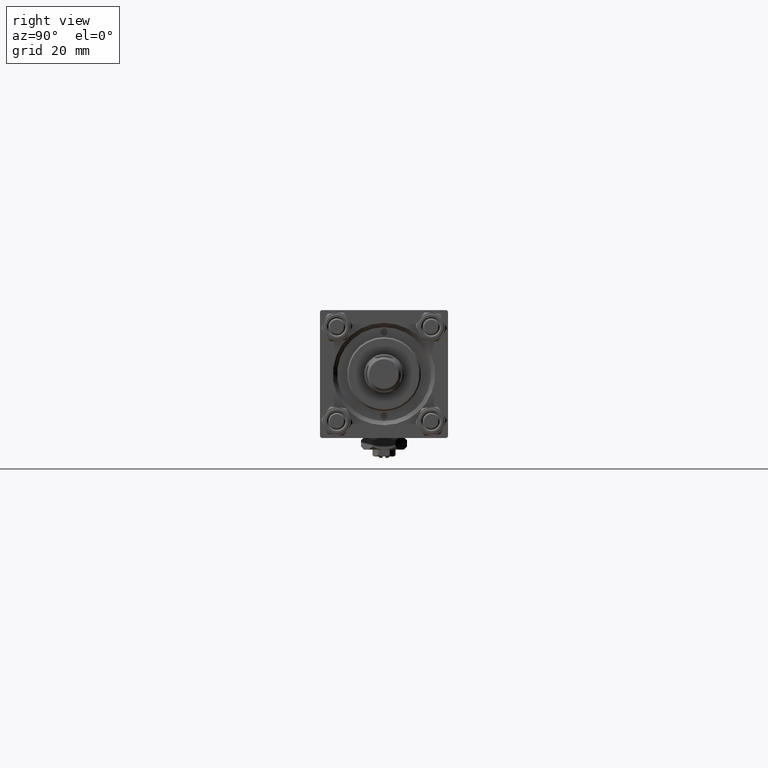
[diagram: clean part render]
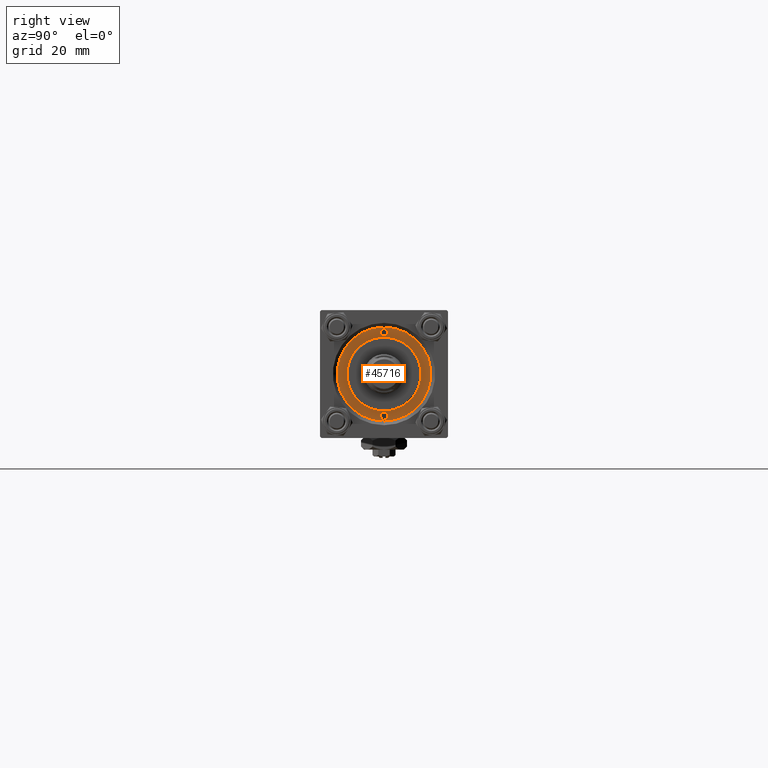
[diagram: same view with one face highlighted and labeled with its STEP entity id]
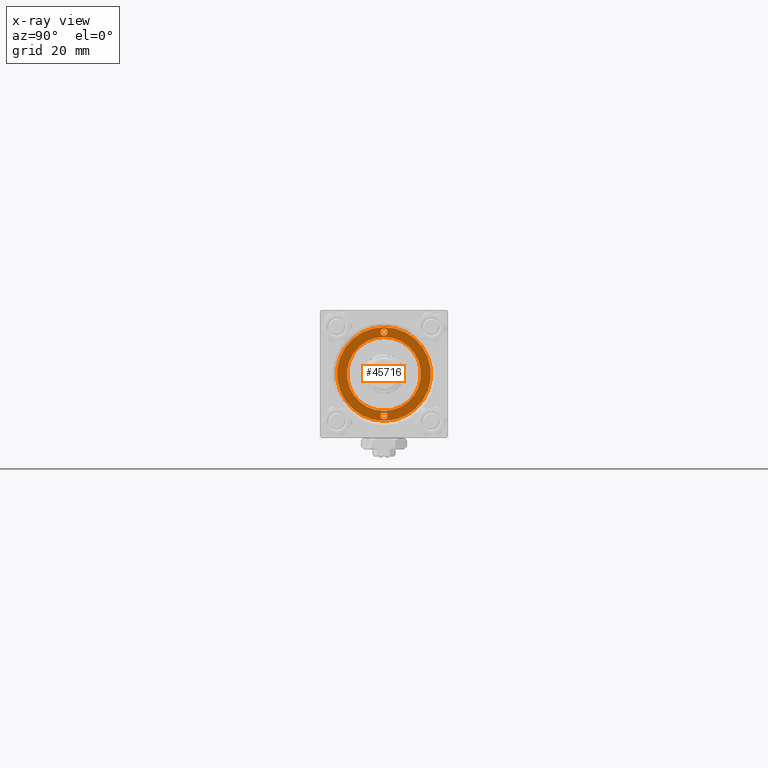
[diagram: x-ray of the same camera — body ghosted, the highlighted face saturated]
A machine part, right view. The second image highlights one B-rep face of the part: STEP entity #45716.
The next image is the same camera in x-ray: the body ghosted, the highlighted face saturated — about 0% of this face is hidden behind the body in this view.
In plain terms, the highlighted planar face has unit normal (1, 0, -0).
Its self-contained STEP definition (entity closure, byte-faithful):
#894 = AXIS2_PLACEMENT_3D ( 'NONE', #3569, #47965, #31613 ) ;
#1020 = VERTEX_POINT ( 'NONE', #24197 ) ;
#1903 = CIRCLE ( 'NONE', #31449, 1.249999999999997558 ) ;
#2749 = CARTESIAN_POINT ( 'NONE',  ( -14.75000000000000000, 0.000000000000000000, 28.69999999999999929 ) ) ;
#3569 = CARTESIAN_POINT ( 'NONE',  ( 0.000000000000000000, 0.000000000000000000, 28.69999999999999929 ) ) ;
#3622 = ORIENTED_EDGE ( 'NONE', *, *, #21166, .F. ) ;
#6260 = DIRECTION ( 'NONE',  ( 0.000000000000000000, 0.000000000000000000, 1.000000000000000000 ) ) ;
#6592 = AXIS2_PLACEMENT_3D ( 'NONE', #2749, #23106, #11733 ) ;
#11511 = PLANE ( 'NONE',  #894 ) ;
#11733 = DIRECTION ( 'NONE',  ( 1.000000000000000000, 0.000000000000000000, 0.000000000000000000 ) ) ;
#12741 = EDGE_CURVE ( 'NONE', #1020, #23071, #17418, .T. ) ;
#14011 = VERTEX_POINT ( 'NONE', #46969 ) ;
#14573 = VERTEX_POINT ( 'NONE', #31092 ) ;
#15181 = DIRECTION ( 'NONE',  ( 1.000000000000000000, 0.000000000000000000, 0.000000000000000000 ) ) ;
#15479 = FACE_OUTER_BOUND ( 'NONE', #40614, .T. ) ;
#15742 = FACE_BOUND ( 'NONE', #31601, .T. ) ;
#16863 = EDGE_CURVE ( 'NONE', #23071, #1020, #31905, .T. ) ;
#17418 = CIRCLE ( 'NONE', #50270, 16.50000000000000000 ) ;
#20011 = VERTEX_POINT ( 'NONE', #30595 ) ;
#20883 = DIRECTION ( 'NONE',  ( 0.000000000000000000, 0.000000000000000000, 1.000000000000000000 ) ) ;
#20895 = CARTESIAN_POINT ( 'NONE',  ( 13.50000000000000000, 1.530808498934190831E-16, 28.69999999999999929 ) ) ;
#20992 = AXIS2_PLACEMENT_3D ( 'NONE', #50524, #46312, #21781 ) ;
#21166 = EDGE_CURVE ( 'NONE', #14573, #14011, #1903, .T. ) ;
#21443 = CARTESIAN_POINT ( 'NONE',  ( -13.00000000000000178, 0.000000000000000000, 28.69999999999999929 ) ) ;
#21778 = VERTEX_POINT ( 'NONE', #20895 ) ;
#21781 = DIRECTION ( 'NONE',  ( 1.000000000000000000, 0.000000000000000000, 0.000000000000000000 ) ) ;
#22263 = ORIENTED_EDGE ( 'NONE', *, *, #51145, .F. ) ;
#22395 = DIRECTION ( 'NONE',  ( 1.000000000000000000, 0.000000000000000000, 0.000000000000000000 ) ) ;
#23071 = VERTEX_POINT ( 'NONE', #35047 ) ;
#23106 = DIRECTION ( 'NONE',  ( 0.000000000000000000, 0.000000000000000000, 1.000000000000000000 ) ) ;
#23416 = CIRCLE ( 'NONE', #6592, 1.249999999999997558 ) ;
#24043 = EDGE_CURVE ( 'NONE', #36601, #47130, #36655, .T. ) ;
#24197 = CARTESIAN_POINT ( 'NONE',  ( 16.50000000000000000, 2.020667218593133100E-15, 28.69999999999999929 ) ) ;
#24832 = CARTESIAN_POINT ( 'NONE',  ( 14.75000000000000000, 0.000000000000000000, 28.69999999999999929 ) ) ;
#25638 = ORIENTED_EDGE ( 'NONE', *, *, #24043, .F. ) ;
#25685 = AXIS2_PLACEMENT_3D ( 'NONE', #43486, #6260, #22395 ) ;
#26669 = DIRECTION ( 'NONE',  ( 0.000000000000000000, 0.000000000000000000, 1.000000000000000000 ) ) ;
#26917 = EDGE_LOOP ( 'NONE', ( #3622, #22263 ) ) ;
#28923 = EDGE_CURVE ( 'NONE', #20011, #21778, #47635, .T. ) ;
#29331 = EDGE_LOOP ( 'NONE', ( #25638, #38404 ) ) ;
#29956 = AXIS2_PLACEMENT_3D ( 'NONE', #24832, #20883, #36988 ) ;
#30128 = CARTESIAN_POINT ( 'NONE',  ( 0.000000000000000000, 0.000000000000000000, 28.69999999999999929 ) ) ;
#30395 = DIRECTION ( 'NONE',  ( 1.000000000000000000, 0.000000000000000000, 0.000000000000000000 ) ) ;
#30595 = CARTESIAN_POINT ( 'NONE',  ( 16.00000000000000000, 0.000000000000000000, 28.69999999999999929 ) ) ;
#31092 = CARTESIAN_POINT ( 'NONE',  ( -13.50000000000000178, 0.000000000000000000, 28.69999999999999929 ) ) ;
#31118 = DIRECTION ( 'NONE',  ( 1.000000000000000000, 0.000000000000000000, 0.000000000000000000 ) ) ;
#31449 = AXIS2_PLACEMENT_3D ( 'NONE', #47977, #39269, #31118 ) ;
#31601 = EDGE_LOOP ( 'NONE', ( #42892, #46389 ) ) ;
#31613 = DIRECTION ( 'NONE',  ( 1.000000000000000000, 0.000000000000000000, -0.000000000000000000 ) ) ;
#31905 = CIRCLE ( 'NONE', #20992, 16.50000000000000000 ) ;
#32024 = AXIS2_PLACEMENT_3D ( 'NONE', #47387, #51836, #15181 ) ;
#33637 = EDGE_CURVE ( 'NONE', #21778, #20011, #46955, .T. ) ;
#33667 = CARTESIAN_POINT ( 'NONE',  ( 13.00000000000000178, 1.592040838891559293E-15, 28.69999999999999929 ) ) ;
#33880 = ORIENTED_EDGE ( 'NONE', *, *, #16863, .T. ) ;
#35047 = CARTESIAN_POINT ( 'NONE',  ( -16.50000000000000000, 0.000000000000000000, 28.69999999999999929 ) ) ;
#35555 = FACE_BOUND ( 'NONE', #26917, .T. ) ;
#36601 = VERTEX_POINT ( 'NONE', #21443 ) ;
#36655 = CIRCLE ( 'NONE', #25685, 13.00000000000000178 ) ;
#36988 = DIRECTION ( 'NONE',  ( 1.000000000000000000, 0.000000000000000000, 0.000000000000000000 ) ) ;
#38404 = ORIENTED_EDGE ( 'NONE', *, *, #40416, .F. ) ;
#39269 = DIRECTION ( 'NONE',  ( 0.000000000000000000, 0.000000000000000000, 1.000000000000000000 ) ) ;
#40416 = EDGE_CURVE ( 'NONE', #47130, #36601, #48052, .T. ) ;
#40614 = EDGE_LOOP ( 'NONE', ( #33880, #44775 ) ) ;
#42483 = CARTESIAN_POINT ( 'NONE',  ( 14.75000000000000000, 0.000000000000000000, 28.69999999999999929 ) ) ;
#42892 = ORIENTED_EDGE ( 'NONE', *, *, #28923, .F. ) ;
#43254 = DIRECTION ( 'NONE',  ( 1.000000000000000000, 0.000000000000000000, 0.000000000000000000 ) ) ;
#43486 = CARTESIAN_POINT ( 'NONE',  ( 0.000000000000000000, 0.000000000000000000, 28.69999999999999929 ) ) ;
#44775 = ORIENTED_EDGE ( 'NONE', *, *, #12741, .T. ) ;
#45716 = ADVANCED_FACE ( 'NONE', ( #35555, #15742, #51625, #15479 ), #11511, .T. ) ;
#46312 = DIRECTION ( 'NONE',  ( 0.000000000000000000, 0.000000000000000000, 1.000000000000000000 ) ) ;
#46389 = ORIENTED_EDGE ( 'NONE', *, *, #33637, .F. ) ;
#46955 = CIRCLE ( 'NONE', #51970, 1.250000000000001110 ) ;
#46969 = CARTESIAN_POINT ( 'NONE',  ( -15.99999999999999645, 1.530808498934190585E-16, 28.69999999999999929 ) ) ;
#47130 = VERTEX_POINT ( 'NONE', #33667 ) ;
#47387 = CARTESIAN_POINT ( 'NONE',  ( 0.000000000000000000, 0.000000000000000000, 28.69999999999999929 ) ) ;
#47635 = CIRCLE ( 'NONE', #29956, 1.250000000000001110 ) ;
#47965 = DIRECTION ( 'NONE',  ( 0.000000000000000000, 0.000000000000000000, 1.000000000000000000 ) ) ;
#47977 = CARTESIAN_POINT ( 'NONE',  ( -14.75000000000000000, 0.000000000000000000, 28.69999999999999929 ) ) ;
#48052 = CIRCLE ( 'NONE', #32024, 13.00000000000000178 ) ;
#50270 = AXIS2_PLACEMENT_3D ( 'NONE', #30128, #26669, #30395 ) ;
#50392 = DIRECTION ( 'NONE',  ( 0.000000000000000000, 0.000000000000000000, 1.000000000000000000 ) ) ;
#50524 = CARTESIAN_POINT ( 'NONE',  ( 0.000000000000000000, 0.000000000000000000, 28.69999999999999929 ) ) ;
#51145 = EDGE_CURVE ( 'NONE', #14011, #14573, #23416, .T. ) ;
#51625 = FACE_BOUND ( 'NONE', #29331, .T. ) ;
#51836 = DIRECTION ( 'NONE',  ( 0.000000000000000000, 0.000000000000000000, 1.000000000000000000 ) ) ;
#51970 = AXIS2_PLACEMENT_3D ( 'NONE', #42483, #50392, #43254 ) ;